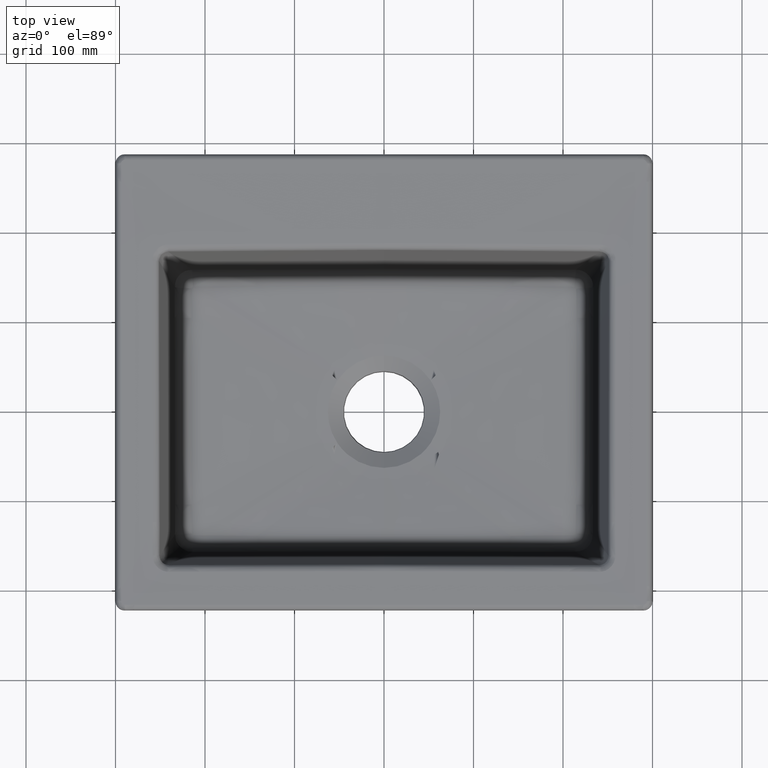
[diagram: clean part render]
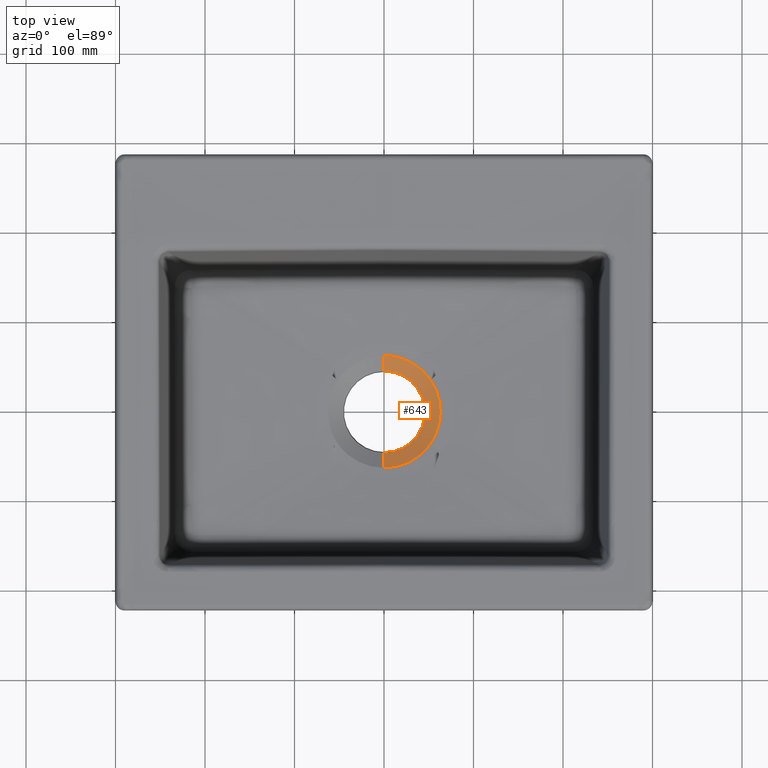
[diagram: same view with one face highlighted and labeled with its STEP entity id]
A machine part, top view. The second image highlights one B-rep face of the part: STEP entity #643.
In plain terms, the highlighted conical surface has half-angle 60 deg.
Its self-contained STEP definition (entity closure, byte-faithful):
#443=CONICAL_SURFACE('',#5422,45.6192580584448,59.9999999999997);
#448=LINE('',#6560,#477);
#449=LINE('',#6562,#478);
#477=VECTOR('',#5634,1.);
#478=VECTOR('',#5635,1.);
#505=CIRCLE('',#5420,45.6192580584448);
#643=ADVANCED_FACE('',(#1102),#443,.F.);
#1102=FACE_OUTER_BOUND('',#1466,.T.);
#1466=EDGE_LOOP('',(#1870,#1871,#1872,#1873,#1874,#1875));
#1870=ORIENTED_EDGE('',*,*,#4052,.F.);
#1871=ORIENTED_EDGE('',*,*,#4050,.F.);
#1872=ORIENTED_EDGE('',*,*,#4053,.F.);
#1873=ORIENTED_EDGE('',*,*,#4054,.T.);
#1874=ORIENTED_EDGE('',*,*,#4055,.T.);
#1875=ORIENTED_EDGE('',*,*,#4056,.T.);
#3561=VERTEX_POINT('',#6555);
#3562=VERTEX_POINT('',#6557);
#3563=VERTEX_POINT('',#6561);
#3564=VERTEX_POINT('',#6563);
#3565=VERTEX_POINT('',#6574);
#3566=VERTEX_POINT('',#6587);
#4050=EDGE_CURVE('',#3561,#3562,#505,.T.);
#4052=EDGE_CURVE('',#3562,#3563,#448,.T.);
#4053=EDGE_CURVE('',#3564,#3561,#449,.T.);
#4054=EDGE_CURVE('',#3564,#3565,#4899,.T.);
#4055=EDGE_CURVE('',#3565,#3566,#4900,.T.);
#4056=EDGE_CURVE('',#3566,#3563,#4901,.T.);
#4899=B_SPLINE_CURVE_WITH_KNOTS('',3,(#6564,#6565,#6566,#6567,#6568,#6569,
#6570,#6571,#6572,#6573),.UNSPECIFIED.,.F.,.F.,(4,2,2,2,4),(0.,0.25,0.5,
0.75,1.),.UNSPECIFIED.);
#4900=B_SPLINE_CURVE_WITH_KNOTS('',3,(#6575,#6576,#6577,#6578,#6579,#6580,
#6581,#6582,#6583,#6584,#6585,#6586),.UNSPECIFIED.,.F.,.F.,(4,2,2,2,2,4),
(0.,0.25,0.5,0.625,0.75,1.),.UNSPECIFIED.);
#4901=B_SPLINE_CURVE_WITH_KNOTS('',3,(#6588,#6589,#6590,#6591,#6592,#6593,
#6594,#6595,#6596,#6597),.UNSPECIFIED.,.F.,.F.,(4,2,2,2,4),(0.,0.25,0.5,
0.75,1.),.UNSPECIFIED.);
#5420=AXIS2_PLACEMENT_3D('',#6556,#5629,#5630);
#5422=AXIS2_PLACEMENT_3D('',#6598,#5636,#5637);
#5629=DIRECTION('',(0.,0.,1.));
#5630=DIRECTION('',(0.,1.,0.));
#5634=DIRECTION('',(0.,0.866025403784436,0.500000000000005));
#5635=DIRECTION('',(0.,0.866025403784436,-0.500000000000005));
#5636=DIRECTION('',(0.,0.,1.));
#5637=DIRECTION('',(0.,-1.,0.));
#6555=CARTESIAN_POINT('',(-5.14496463427281E-15,-45.6192580584449,-209.730616223325));
#6556=CARTESIAN_POINT('',(5.55111512312578E-14,-4.90115767001933E-14,-209.730616223325));
#6557=CARTESIAN_POINT('',(-3.74827767525402E-15,45.6192580584448,-209.730616223325));
#6560=CARTESIAN_POINT('',(0.,-4.90115767001933E-14,-236.068907143599));
#6561=CARTESIAN_POINT('',(1.57980973732951E-13,62.7624659108409,-199.832980489374));
#6562=CARTESIAN_POINT('',(0.,-4.90115767001933E-14,-236.068907143599));
#6563=CARTESIAN_POINT('',(4.87175380272443E-9,-62.7624648374055,-199.832980309164));
#6564=CARTESIAN_POINT('',(-1.4048607765517E-11,-62.7624666826017,-199.832980109394));
#6565=CARTESIAN_POINT('',(5.17071924784355,-62.7624921792413,-199.832965388903));
#6566=CARTESIAN_POINT('',(10.2342401141036,-62.1330744776056,-199.832985901291));
#6567=CARTESIAN_POINT('',(20.1541410640562,-59.6579654274072,-199.832969222565));
#6568=CARTESIAN_POINT('',(25.0216918297523,-57.7843462879098,-199.832984859709));
#6569=CARTESIAN_POINT('',(34.0194342068184,-52.9886379228046,-199.83297605297));
#6570=CARTESIAN_POINT('',(38.2678020111387,-50.0104642130235,-199.832981255345));
#6571=CARTESIAN_POINT('',(45.8846371762989,-43.1285510646655,-199.832978292483));
#6572=CARTESIAN_POINT('',(49.2345908448965,-39.2659977010396,-199.832980508934));
#6573=CARTESIAN_POINT('',(52.1158131085053,-34.9724057116147,-199.832980508934));
#6574=CARTESIAN_POINT('',(52.1158131101449,-34.9724057127149,-199.832980508843));
#6575=CARTESIAN_POINT('',(52.1158131085053,-34.9724057116147,-199.832980508934));
#6576=CARTESIAN_POINT('',(55.5947441265461,-29.7881092623824,-199.832980508918));
#6577=CARTESIAN_POINT('',(58.2304069908636,-24.2248445270228,-199.832977561349));
#6578=CARTESIAN_POINT('',(61.8465083595294,-12.3544502060822,-199.83297919196));
#6579=CARTESIAN_POINT('',(62.7615526158448,-6.18626252907302,-199.832977780542));
#6580=CARTESIAN_POINT('',(62.7629216721111,3.07914890612394,-199.832981854362));
#6581=CARTESIAN_POINT('',(62.5311687505129,6.21062450734157,-199.832896439363));
#6582=CARTESIAN_POINT('',(61.6170941489319,12.3309590437958,-199.832896806301));
#6583=CARTESIAN_POINT('',(60.9383747758985,15.3339560170839,-199.832976499666));
#6584=CARTESIAN_POINT('',(58.2468742760604,24.1739386049434,-199.832982076788));
#6585=CARTESIAN_POINT('',(55.5496111528034,29.8721684904816,-199.832980508934));
#6586=CARTESIAN_POINT('',(52.0629073764796,35.0511171394943,-199.832980508934));
#6587=CARTESIAN_POINT('',(52.0629073764796,35.0511171394943,-199.832980508934));
#6588=CARTESIAN_POINT('',(52.0629073764795,35.0511171394943,-199.832980508934));
#6589=CARTESIAN_POINT('',(49.1797240485121,39.333631330297,-199.832980508934));
#6590=CARTESIAN_POINT('',(45.8357404364214,43.1770957164454,-199.832979896847));
#6591=CARTESIAN_POINT('',(38.2572836224557,50.0155673720489,-199.832979741132));
#6592=CARTESIAN_POINT('',(33.9929593687454,53.0048534290093,-199.832981709259));
#6593=CARTESIAN_POINT('',(25.0074378318653,57.7898291256899,-199.832979300899));
#6594=CARTESIAN_POINT('',(20.1749273708309,59.6520694219108,-199.832980609979));
#6595=CARTESIAN_POINT('',(10.2293311303918,62.135006666836,-199.832975145199));
#6596=CARTESIAN_POINT('',(5.16263914425132,62.7624585807852,-199.83298478698));
#6597=CARTESIAN_POINT('',(2.61198996323488E-13,62.76246604988,-199.832980474696));
#6598=CARTESIAN_POINT('',(5.55111512312578E-14,-4.90115767001933E-14,-209.730616223325));